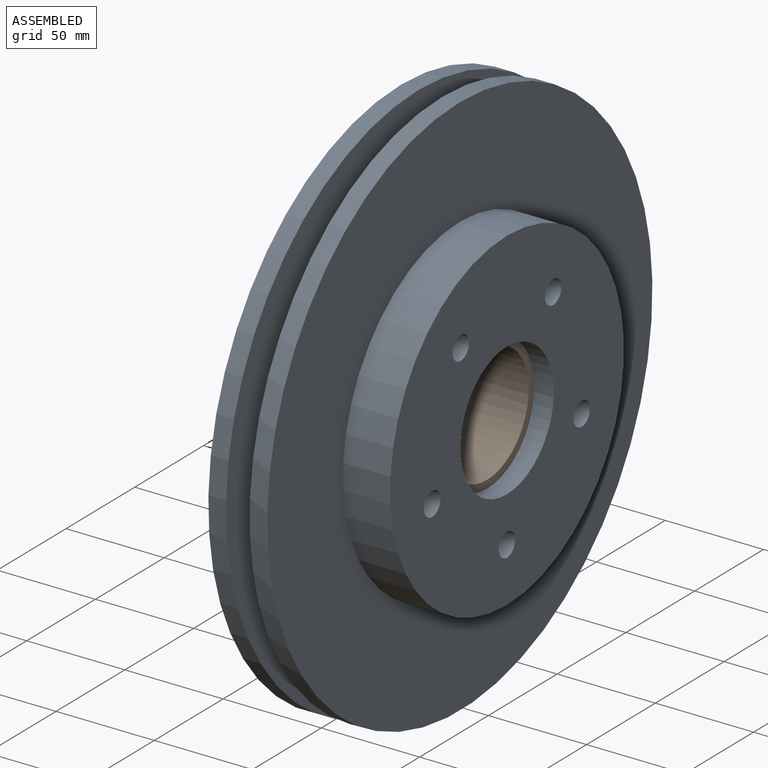
[diagram: assembled view]
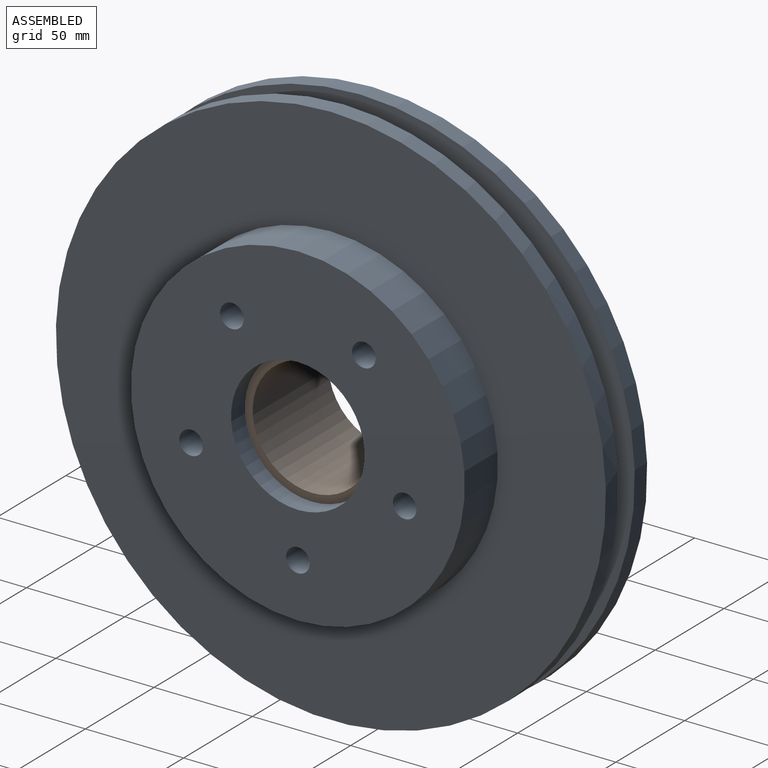
[diagram: assembled view, second angle]
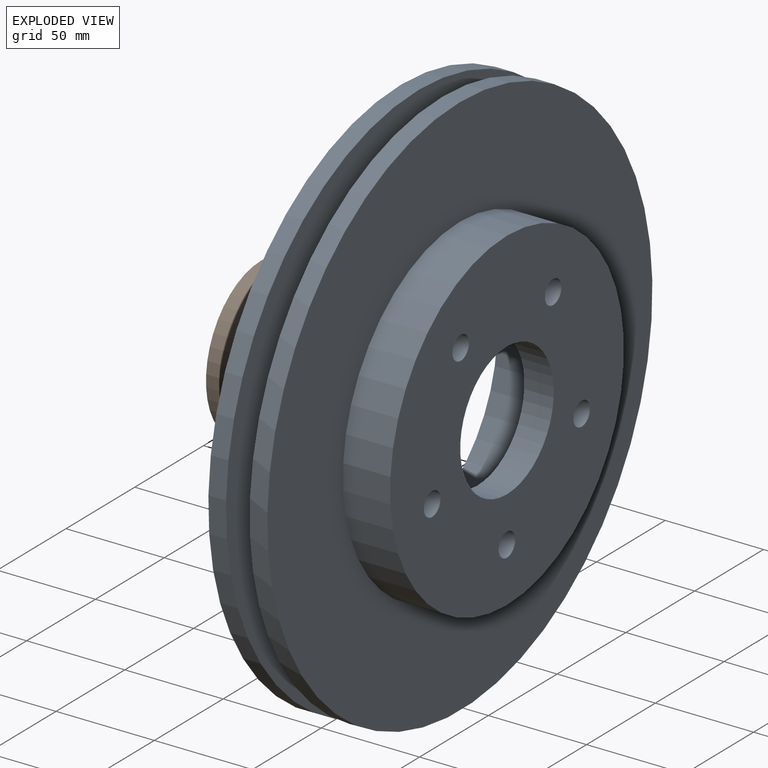
[diagram: exploded view]
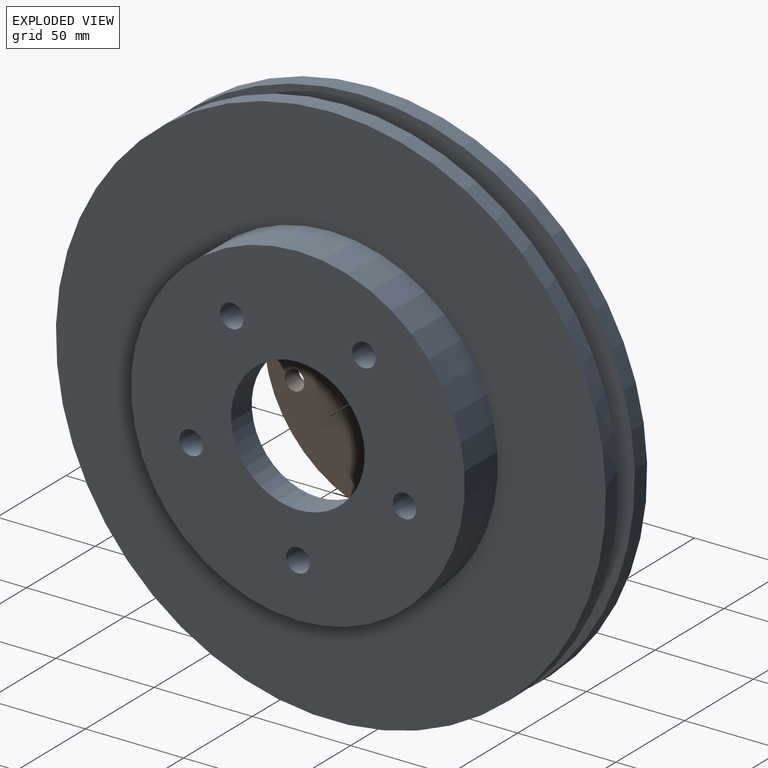
[diagram: exploded view, second angle]
ASSEMBLY  parts=2 mates=2
PART A: 17 faces, bbox 54x280x280 mm
  f0: cylinder r=140mm len=280mm, axis (-1,0,0), area 7916.8mm2, adj f6,f15
  f1: cylinder r=6mm len=15mm, axis (1,0,0), area 565.5mm2, adj f8,f10
  f2: cylinder r=6mm len=15mm, axis (1,0,0), area 565.5mm2, adj f8,f10
  f3: cylinder r=6mm len=15mm, axis (1,0,0), area 565.5mm2, adj f8,f10
  f4: cylinder r=6mm len=15mm, axis (1,0,0), area 565.5mm2, adj f8,f10
  f5: cylinder r=140mm len=280mm, axis (-1,0,0), area 7916.8mm2, adj f12,f16
  f6: plane 280x280mm, normal (-1,0,0), area 46181.4mm2, adj f0,f7
  f7: cylinder r=70mm len=140mm, axis (-1,0,0), area 17153.1mm2, adj f6,f8
  f8: plane 140x140mm, normal (-1,0,0), area 11196.6mm2, adj f1,f2,f3,f4,f7,f9,f13
  f9: cylinder r=34mm len=68mm, axis (-1,0,0), area 3204.4mm2, adj f8,f10
  f10: plane 170x170mm, normal (1,0,0), area 18500.8mm2, adj f1,f2,f3,f4,f9,f11,f13
  f11: cylinder r=85mm len=170mm, axis (-1,0,0), area 12817.7mm2, adj f10,f12
  f12: plane 280x280mm, normal (1,0,0), area 38877.2mm2, adj f5,f11
  f13: cylinder r=6mm len=15mm, axis (1,0,0), area 565.5mm2, adj f8,f10
  f14: cylinder r=79mm len=158mm, axis (-1,0,0), area 5956.5mm2, adj f15,f16
  f15: plane 280x280mm, normal (1,0,0), area 41968.5mm2, adj f0,f14
  f16: plane 280x280mm, normal (-1,0,0), area 41968.5mm2, adj f5,f14
PART B: 13 faces, bbox 140x140x55 mm
  f0: cylinder r=5mm len=10mm, axis (0,0,1), area 314.2mm2, adj f4,f6
  f1: cylinder r=5mm len=10mm, axis (0,0,1), area 314.2mm2, adj f4,f6
  f2: cylinder r=5mm len=10mm, axis (0,0,1), area 314.2mm2, adj f4,f6
  f3: cylinder r=5mm len=10mm, axis (0,0,1), area 314.2mm2, adj f4,f6
  f4: plane 140x140mm, normal (0,0,-1), area 9974.6mm2, adj f0,f1,f2,f3,f5,f11,f12
  f5: cylinder r=70mm len=140mm, axis (0,0,1), area 4398.2mm2, adj f4,f6
  f6: plane 140x140mm, normal (0,0,1), area 11369.4mm2, adj f0,f1,f2,f3,f5,f7,f12
  f7: cylinder r=34mm len=68mm, axis (0,0,1), area 1068.1mm2, adj f6,f8
  f8: plane 68x68mm, normal (0,0,1), area 804.2mm2, adj f7,f9
  f9: cylinder r=30mm len=60mm, axis (0,0,1), area 10367.3mm2, adj f8,f10
  f10: plane 80x80mm, normal (0,0,-1), area 2199.1mm2, adj f9,f11
  f11: cylinder r=40mm len=80mm, axis (0,0,1), area 10053.1mm2, adj f4,f10
  f12: cylinder r=5mm len=10mm, axis (0,0,1), area 314.2mm2, adj f4,f6
PLACE A t=(-235.02,36.46,102.91)mm
PLACE B rot(axis=(0.71,0,0.71),180deg) t=(-246.02,36.46,102.91)mm
MATE planar B.f5 <-> A.f1  axis (1,0,0) through (-196.02,36.46,102.91)mm
MATE cylindrical B.f5 <-> A.f0  axis (1,0,0) through (-201.02,36.46,102.91)mm
